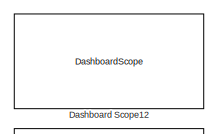
[diagram: root canvas - part 1/5, top left region]
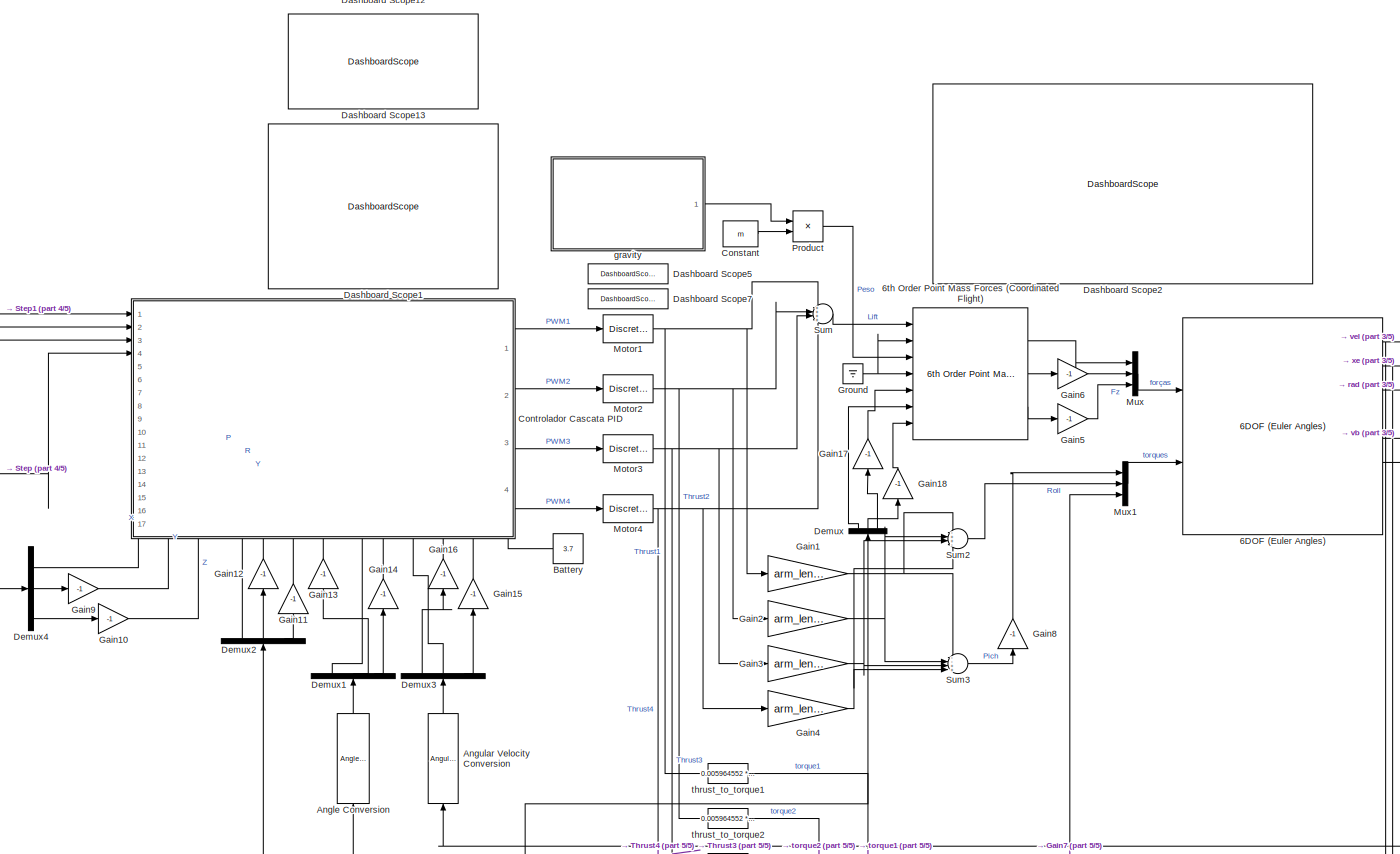
[diagram: root canvas - part 2/5, central region]
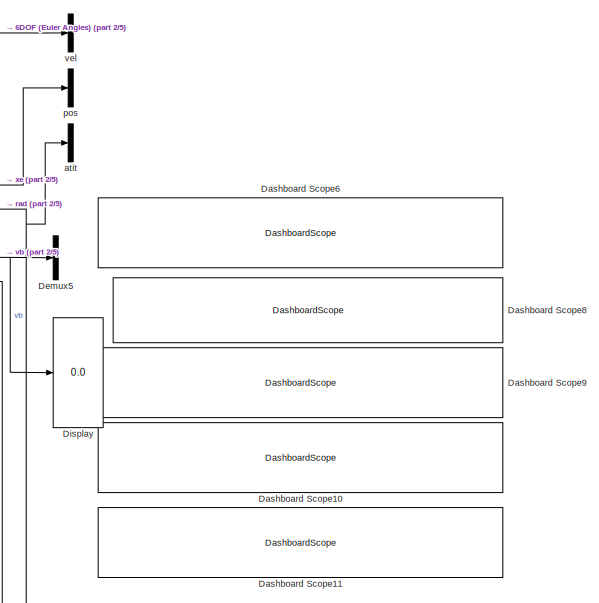
[diagram: root canvas - part 3/5, middle right region]
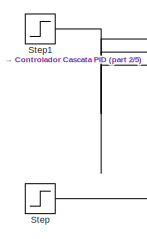
[diagram: root canvas - part 4/5, middle left region]
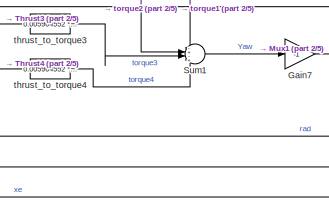
[diagram: root canvas - part 5/5, bottom center region]
MODEL slx_fbe5f493a3ac
KIND model
CONFIG AbsTol = auto
CONFIG EnableMultiTasking = off
CONFIG FixedStep = auto
CONFIG MaxStep = auto
CONFIG MinStep = auto
CONFIG RelTol = 1e-3
CONFIG SampleTimeConstraint = Unconstrained
CONFIG SolverName = VariableStepAuto
CONFIG StartTime = 0.0
CONFIG StopTime = 30.1
BLOCK [Reference] 6DOF (Euler Angles)  REF=shared6dof/6DOF (Euler Angles)
  Ports = [2, 8]
  SourceBlock = shared6dof/6DOF (Euler Angles)
  SourceProductBaseCode = AE,PW,MT,UV,VE,VP
  SourceType = 6DOF EoM (Body Axis)
BLOCK [Reference] 6th Order Point Mass Forces (Coordinated Flight)  REF=aerolibptmass/6th Order Point Mass Forces
(Coordinated Flight)
  Ports = [7, 3]
  SourceBlock = aerolibptmass/6th Order Point Mass Forces\n(Coordinated Flight)
  SourceProductBaseCode = AE
  SourceType = 6th Order Point Mass Forces (Coordinated Flight)
BLOCK [Reference] Angle Conversion  REF=aerolibconvert2/Angle Conversion
  NameLocation = right
  Ports = [1, 1]
  SourceBlock = aerolibconvert2/Angle Conversion
  SourceProductBaseCode = AE
  SourceType = Angle Conversion
BLOCK [Reference] Angular Velocity Conversion  REF=aerolibconvert2/Angular Velocity
Conversion
  NameLocation = right
  Ports = [1, 1]
  SourceBlock = aerolibconvert2/Angular Velocity\nConversion
  SourceProductBaseCode = AE
  SourceType = Angular Velocity Conversion
BLOCK [Constant] Battery
  Value = 3.7
BLOCK [Constant] Constant
  Value = m
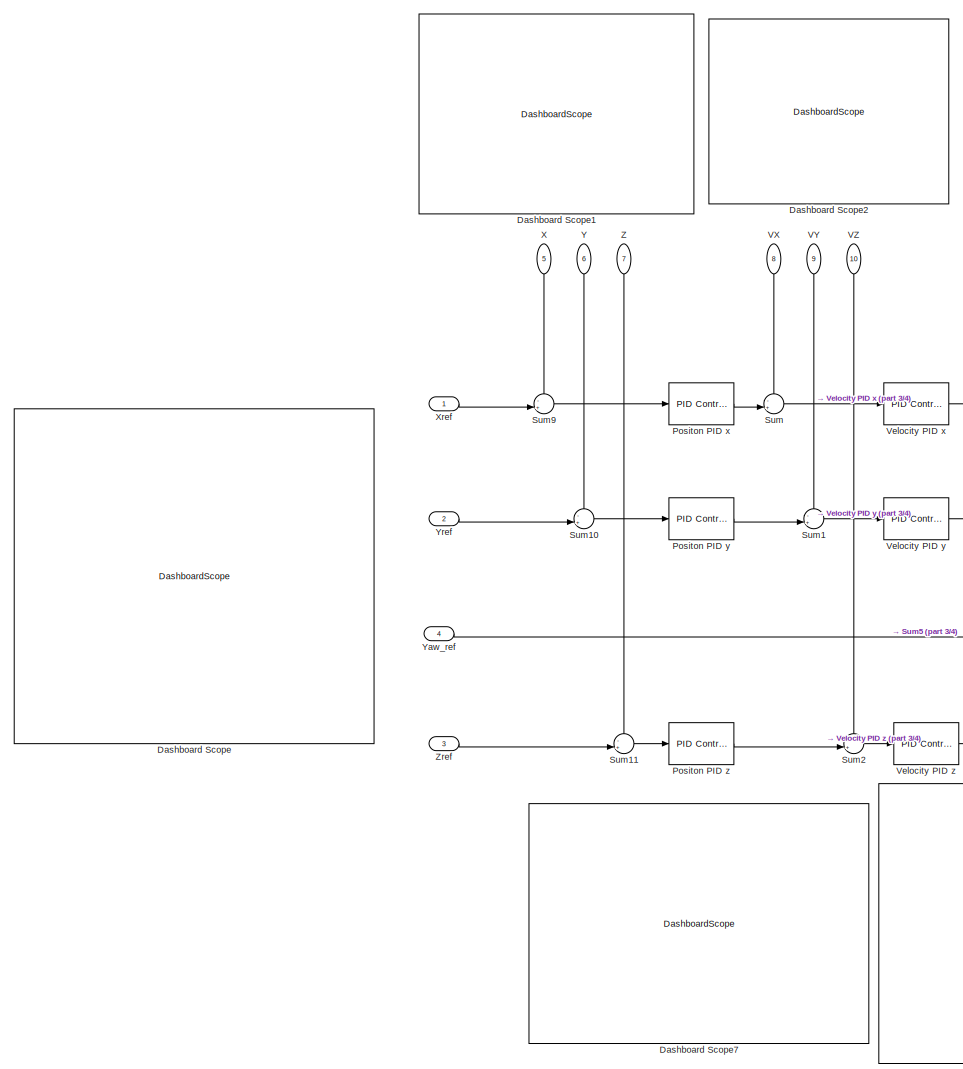
[diagram: Controlador Cascata PID - part 1/4, left side, full height]
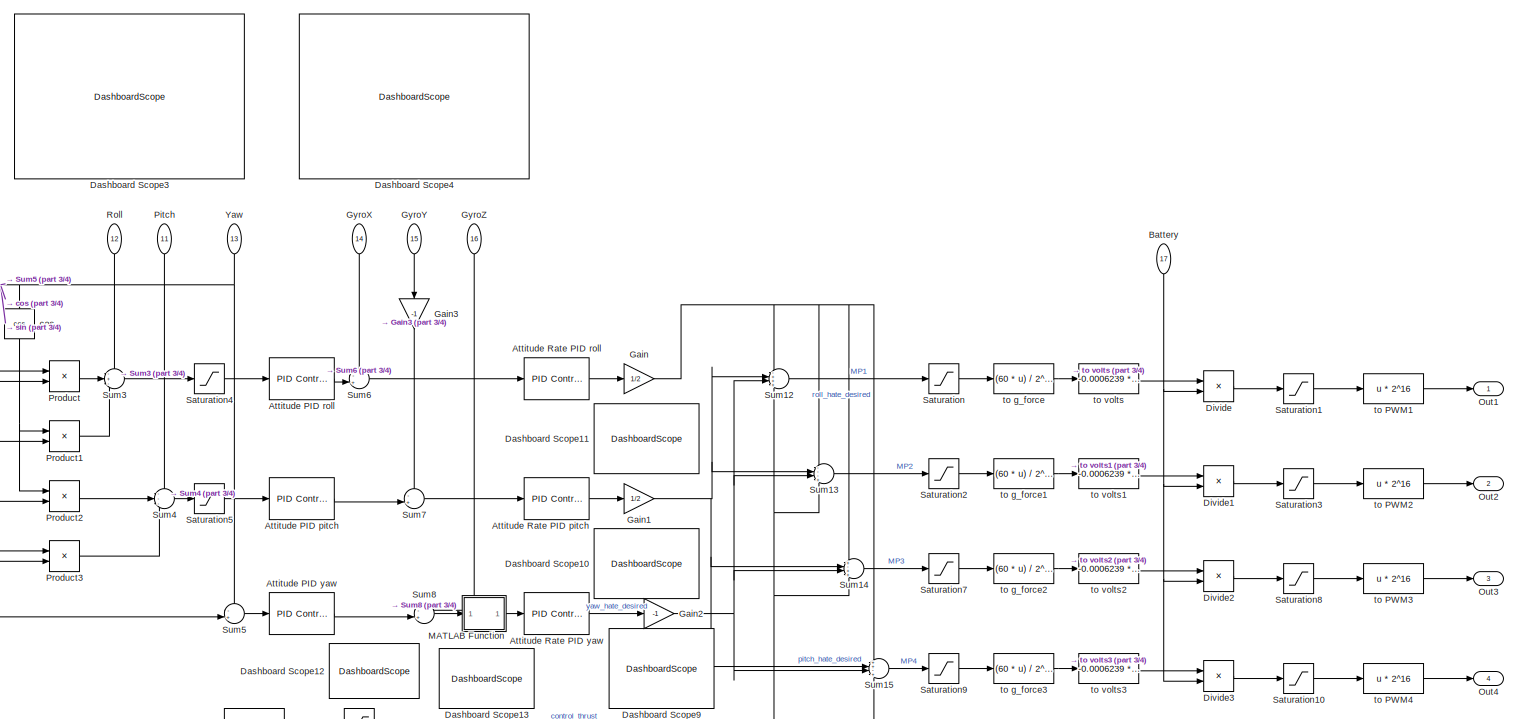
[diagram: Controlador Cascata PID - part 2/4, central region]
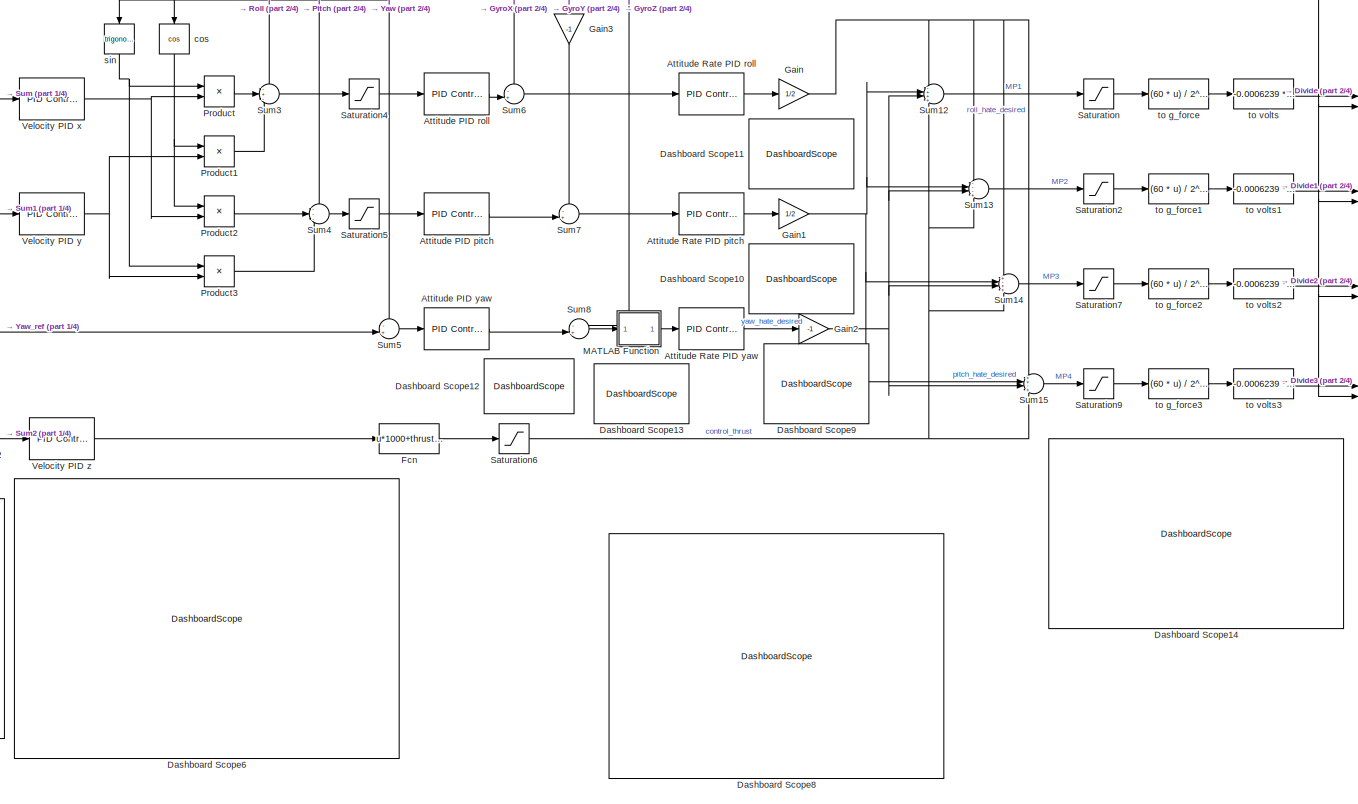
[diagram: Controlador Cascata PID - part 3/4, central region]
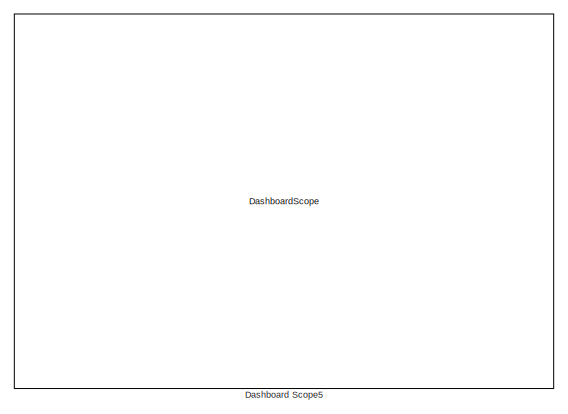
[diagram: Controlador Cascata PID - part 4/4, middle right region]
BLOCK [SubSystem] Controlador Cascata PID
  PortSchema = {"entries":[{"content":{"sides":[{"content":{"connectorIds":["In1","In2","In3","In4"]},"type":"ConnectorPlacement.EquallySpacedRectSide","uuid":"a2fdc90b-2784-47b7-8987-00e2f6fd0cff"},{"content":{"connectorIds":["Out1","Out2","Out3","Out4"],"side":"RIGHT"},"type":"ConnectorPlacement.EquallySpacedRectSide","uuid":"4d6aaf64-ac47-4bfb-8f11-7b75e050fc51"},{"content":{"connectorIds":[],"side":"TOP"},"t...<+508ch>
  Ports = [17, 4]
  RequestExecContextInheritance = off
BLOCK [Reference] Controlador Cascata PID/Attitude PID pitch  REF=pid_lib/PID Controller
  Ports = [1, 1]
  SourceBlock = pid_lib/PID Controller
  SourceProductBaseCode = SL
  SourceType = PID 1dof
BLOCK [Reference] Controlador Cascata PID/Attitude PID roll  REF=pid_lib/PID Controller
  Ports = [1, 1]
  SourceBlock = pid_lib/PID Controller
  SourceProductBaseCode = SL
  SourceType = PID 1dof
BLOCK [Reference] Controlador Cascata PID/Attitude PID yaw  REF=pid_lib/PID Controller
  Ports = [1, 1]
  SourceBlock = pid_lib/PID Controller
  SourceProductBaseCode = SL
  SourceType = PID 1dof
BLOCK [Reference] Controlador Cascata PID/Attitude Rate PID pitch  REF=pid_lib/PID Controller
  Ports = [1, 1]
  SourceBlock = pid_lib/PID Controller
  SourceProductBaseCode = SL
  SourceType = PID 1dof
BLOCK [Reference] Controlador Cascata PID/Attitude Rate PID roll  REF=pid_lib/PID Controller
  Ports = [1, 1]
  SourceBlock = pid_lib/PID Controller
  SourceProductBaseCode = SL
  SourceType = PID 1dof
BLOCK [Reference] Controlador Cascata PID/Attitude Rate PID yaw  REF=pid_lib/PID Controller
  Ports = [1, 1]
  SourceBlock = pid_lib/PID Controller
  SourceProductBaseCode = SL
  SourceType = PID 1dof
BLOCK [Inport] Controlador Cascata PID/Battery
  IconDisplay = Signal name
  NameLocation = left
  Port = 17
BLOCK [DashboardScope] Controlador Cascata PID/Dashboard Scope
BLOCK [DashboardScope] Controlador Cascata PID/Dashboard Scope1
BLOCK [DashboardScope] Controlador Cascata PID/Dashboard Scope10
BLOCK [DashboardScope] Controlador Cascata PID/Dashboard Scope11
BLOCK [DashboardScope] Controlador Cascata PID/Dashboard Scope12
BLOCK [DashboardScope] Controlador Cascata PID/Dashboard Scope13
BLOCK [DashboardScope] Controlador Cascata PID/Dashboard Scope14
BLOCK [DashboardScope] Controlador Cascata PID/Dashboard Scope2
BLOCK [DashboardScope] Controlador Cascata PID/Dashboard Scope3
BLOCK [DashboardScope] Controlador Cascata PID/Dashboard Scope4
BLOCK [DashboardScope] Controlador Cascata PID/Dashboard Scope5
BLOCK [DashboardScope] Controlador Cascata PID/Dashboard Scope6
BLOCK [DashboardScope] Controlador Cascata PID/Dashboard Scope7
BLOCK [DashboardScope] Controlador Cascata PID/Dashboard Scope8
BLOCK [DashboardScope] Controlador Cascata PID/Dashboard Scope9
BLOCK [Product] Controlador Cascata PID/Divide
  Inputs = */
  Ports = [2, 1]
BLOCK [Product] Controlador Cascata PID/Divide1
  Inputs = */
  Ports = [2, 1]
BLOCK [Product] Controlador Cascata PID/Divide2
  Inputs = */
  Ports = [2, 1]
BLOCK [Product] Controlador Cascata PID/Divide3
  Inputs = */
  Ports = [2, 1]
BLOCK [Fcn] Controlador Cascata PID/Fcn
  Expr = u*1000+thrustBase
BLOCK [Gain] Controlador Cascata PID/Gain
  Gain = 1/2
BLOCK [Gain] Controlador Cascata PID/Gain1
  Gain = 1/2
BLOCK [Gain] Controlador Cascata PID/Gain2
  Gain = -1
BLOCK [Gain] Controlador Cascata PID/Gain3
  Gain = -1
  NameLocation = left
BLOCK [Inport] Controlador Cascata PID/GyroX
  IconDisplay = Signal name
  NameLocation = left
  Port = 14
BLOCK [Inport] Controlador Cascata PID/GyroY
  IconDisplay = Signal name
  NameLocation = left
  Port = 15
BLOCK [Inport] Controlador Cascata PID/GyroZ
  IconDisplay = Signal name
  NameLocation = left
  Port = 16
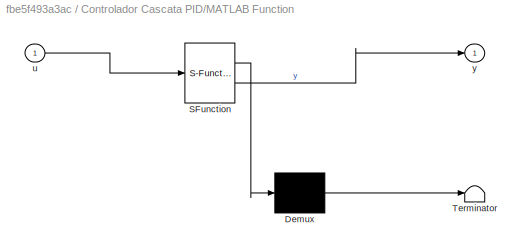
BLOCK [SubSystem] Controlador Cascata PID/MATLAB Function
  ErrorFcn = Stateflow.Translate.translate
  PermitHierarchicalResolution = ExplicitOnly
  Ports = [1, 1]
  RequestExecContextInheritance = off
  SFBlockType = MATLAB Function
  TreatAsAtomicUnit = on
BLOCK [Demux] Controlador Cascata PID/MATLAB Function/ Demux 
  Outputs = 1
  Ports = [1, 1]
BLOCK [S-Function] Controlador Cascata PID/MATLAB Function/ SFunction 
  EnableBusSupport = on
  FunctionName = sf_sfun
  PortCounts = [1 2]
  Ports = [1, 2]
  SFcnIsStateOwnerBlock = off
  SFunctionDeploymentMode = off
  Tag = Stateflow S-Function 2
BLOCK [Terminator] Controlador Cascata PID/MATLAB Function/ Terminator 
BLOCK [Inport] Controlador Cascata PID/MATLAB Function/u
BLOCK [Outport] Controlador Cascata PID/MATLAB Function/y
BLOCK [Outport] Controlador Cascata PID/Out1
BLOCK [Outport] Controlador Cascata PID/Out2
  Port = 2
BLOCK [Outport] Controlador Cascata PID/Out3
  Port = 3
BLOCK [Outport] Controlador Cascata PID/Out4
  Port = 4
BLOCK [Inport] Controlador Cascata PID/Pitch
  IconDisplay = Signal name
  NameLocation = left
  Port = 11
BLOCK [Reference] Controlador Cascata PID/Positon PID x  REF=pid_lib/PID Controller
  Ports = [1, 1]
  SourceBlock = pid_lib/PID Controller
  SourceProductBaseCode = SL
  SourceType = PID 1dof
BLOCK [Reference] Controlador Cascata PID/Positon PID y  REF=pid_lib/PID Controller
  Ports = [1, 1]
  SourceBlock = pid_lib/PID Controller
  SourceProductBaseCode = SL
  SourceType = PID 1dof
BLOCK [Reference] Controlador Cascata PID/Positon PID z  REF=pid_lib/PID Controller
  Ports = [1, 1]
  SourceBlock = pid_lib/PID Controller
  SourceProductBaseCode = SL
  SourceType = PID 1dof
BLOCK [Product] Controlador Cascata PID/Product
  Ports = [2, 1]
BLOCK [Product] Controlador Cascata PID/Product1
  Ports = [2, 1]
BLOCK [Product] Controlador Cascata PID/Product2
  Ports = [2, 1]
BLOCK [Product] Controlador Cascata PID/Product3
  Ports = [2, 1]
BLOCK [Inport] Controlador Cascata PID/Roll
  IconDisplay = Signal name
  NameLocation = left
  Port = 12
BLOCK [Saturate] Controlador Cascata PID/Saturation
  LowerLimit = 0
  UpperLimit = (2^16 - 1)
BLOCK [Saturate] Controlador Cascata PID/Saturation1
  LowerLimit = 0
  UpperLimit = 1.0
BLOCK [Saturate] Controlador Cascata PID/Saturation10
  LowerLimit = 0
  UpperLimit = 1.0
BLOCK [Saturate] Controlador Cascata PID/Saturation2
  LowerLimit = 0
  UpperLimit = (2^16 - 1)
BLOCK [Saturate] Controlador Cascata PID/Saturation3
  LowerLimit = 0
  UpperLimit = 1.0
BLOCK [Saturate] Controlador Cascata PID/Saturation4
  LowerLimit = -rpLimit
  UpperLimit = rpLimit
BLOCK [Saturate] Controlador Cascata PID/Saturation5
  LowerLimit = -rpLimit
  UpperLimit = rpLimit
BLOCK [Saturate] Controlador Cascata PID/Saturation6
  LowerLimit = thrustMim
  UpperLimit = inf
BLOCK [Saturate] Controlador Cascata PID/Saturation7
  LowerLimit = 0
  UpperLimit = (2^16 - 1)
BLOCK [Saturate] Controlador Cascata PID/Saturation8
  LowerLimit = 0
  UpperLimit = 1.0
BLOCK [Saturate] Controlador Cascata PID/Saturation9
  LowerLimit = 0
  UpperLimit = (2^16 - 1)
BLOCK [Sum] Controlador Cascata PID/Sum
  Inputs = -+|
  Ports = [2, 1]
BLOCK [Sum] Controlador Cascata PID/Sum1
  Inputs = -+|
  Ports = [2, 1]
BLOCK [Sum] Controlador Cascata PID/Sum10
  Inputs = -+|
  Ports = [2, 1]
BLOCK [Sum] Controlador Cascata PID/Sum11
  Inputs = -+|
  Ports = [2, 1]
BLOCK [Sum] Controlador Cascata PID/Sum12
  Inputs = -+++
  Ports = [4, 1]
BLOCK [Sum] Controlador Cascata PID/Sum13
  Inputs = ---+
  Ports = [4, 1]
BLOCK [Sum] Controlador Cascata PID/Sum14
  Inputs = +-++
  Ports = [4, 1]
BLOCK [Sum] Controlador Cascata PID/Sum15
  Inputs = ++-+
  Ports = [4, 1]
BLOCK [Sum] Controlador Cascata PID/Sum2
  Inputs = -+|
  Ports = [2, 1]
BLOCK [Sum] Controlador Cascata PID/Sum3
  Inputs = -+-
  Ports = [3, 1]
BLOCK [Sum] Controlador Cascata PID/Sum4
  Inputs = ---
  Ports = [3, 1]
BLOCK [Sum] Controlador Cascata PID/Sum5
  Inputs = -+|
  Ports = [2, 1]
BLOCK [Sum] Controlador Cascata PID/Sum6
  Inputs = -+|
  Ports = [2, 1]
BLOCK [Sum] Controlador Cascata PID/Sum7
  Inputs = -+|
  Ports = [2, 1]
BLOCK [Sum] Controlador Cascata PID/Sum8
  Inputs = -+|
  Ports = [2, 1]
BLOCK [Sum] Controlador Cascata PID/Sum9
  Inputs = -+|
  Ports = [2, 1]
BLOCK [Inport] Controlador Cascata PID/VX
  IconDisplay = Signal name
  NameLocation = left
  Port = 8
BLOCK [Inport] Controlador Cascata PID/VY
  IconDisplay = Signal name
  NameLocation = left
  Port = 9
BLOCK [Inport] Controlador Cascata PID/VZ
  IconDisplay = Signal name
  NameLocation = left
  Port = 10
BLOCK [Reference] Controlador Cascata PID/Velocity PID x  REF=pid_lib/PID Controller
  Ports = [1, 1]
  SourceBlock = pid_lib/PID Controller
  SourceProductBaseCode = SL
  SourceType = PID 1dof
BLOCK [Reference] Controlador Cascata PID/Velocity PID y  REF=pid_lib/PID Controller
  Ports = [1, 1]
  SourceBlock = pid_lib/PID Controller
  SourceProductBaseCode = SL
  SourceType = PID 1dof
BLOCK [Reference] Controlador Cascata PID/Velocity PID z  REF=pid_lib/PID Controller
  Ports = [1, 1]
  SourceBlock = pid_lib/PID Controller
  SourceProductBaseCode = SL
  SourceType = PID 1dof
BLOCK [Inport] Controlador Cascata PID/X
  IconDisplay = Signal name
  NameLocation = left
  Port = 5
BLOCK [Inport] Controlador Cascata PID/Xref
  IconDisplay = Signal name
BLOCK [Inport] Controlador Cascata PID/Y
  IconDisplay = Signal name
  NameLocation = left
  Port = 6
BLOCK [Inport] Controlador Cascata PID/Yaw
  IconDisplay = Signal name
  NameLocation = left
  Port = 13
BLOCK [Inport] Controlador Cascata PID/Yaw_ref
  IconDisplay = Signal name
  Port = 4
BLOCK [Inport] Controlador Cascata PID/Yref
  IconDisplay = Signal name
  Port = 2
BLOCK [Inport] Controlador Cascata PID/Z
  IconDisplay = Signal name
  NameLocation = left
  Port = 7
BLOCK [Inport] Controlador Cascata PID/Zref
  IconDisplay = Signal name
  Port = 3
BLOCK [Trigonometry] Controlador Cascata PID/cos
  NameLocation = left
  Operator = cos
  Ports = [1, 1]
BLOCK [Trigonometry] Controlador Cascata PID/sin
  NameLocation = left
  Ports = [1, 1]
BLOCK [Fcn] Controlador Cascata PID/to PWM1
  Expr = u * 2^16
BLOCK [Fcn] Controlador Cascata PID/to PWM2
  Expr = u * 2^16
BLOCK [Fcn] Controlador Cascata PID/to PWM3
  Expr = u * 2^16
BLOCK [Fcn] Controlador Cascata PID/to PWM4
  Expr = u * 2^16
BLOCK [Fcn] Controlador Cascata PID/to g_force
  Expr = (60 * u) / 2^16
BLOCK [Fcn] Controlador Cascata PID/to g_force1
  Expr = (60 * u) / 2^16
BLOCK [Fcn] Controlador Cascata PID/to g_force2
  Expr = (60 * u) / 2^16
BLOCK [Fcn] Controlador Cascata PID/to g_force3
  Expr = (60 * u) / 2^16
BLOCK [Fcn] Controlador Cascata PID/to volts
  Expr = -0.0006239 * u * u + 0.088 * u;
BLOCK [Fcn] Controlador Cascata PID/to volts1
  Expr = -0.0006239 * u * u + 0.088 * u;
BLOCK [Fcn] Controlador Cascata PID/to volts2
  Expr = -0.0006239 * u * u + 0.088 * u;
BLOCK [Fcn] Controlador Cascata PID/to volts3
  Expr = -0.0006239 * u * u + 0.088 * u;
BLOCK [DashboardScope] Dashboard Scope1
BLOCK [DashboardScope] Dashboard Scope10
BLOCK [DashboardScope] Dashboard Scope11
BLOCK [DashboardScope] Dashboard Scope12
BLOCK [DashboardScope] Dashboard Scope13
BLOCK [DashboardScope] Dashboard Scope2
BLOCK [DashboardScope] Dashboard Scope5
BLOCK [DashboardScope] Dashboard Scope6
BLOCK [DashboardScope] Dashboard Scope7
BLOCK [DashboardScope] Dashboard Scope8
BLOCK [DashboardScope] Dashboard Scope9
BLOCK [Demux] Demux
  NameLocation = right
  Outputs = 3
  Ports = [1, 3]
BLOCK [Demux] Demux1
  NameLocation = right
  Outputs = 3
  Ports = [1, 3]
BLOCK [Demux] Demux2
  NameLocation = right
  Outputs = 3
  Ports = [1, 3]
BLOCK [Demux] Demux3
  NameLocation = right
  Outputs = 3
  Ports = [1, 3]
BLOCK [Demux] Demux4
  Outputs = 3
  Ports = [1, 3]
BLOCK [Demux] Demux5
  Outputs = 3
  Ports = [1, 3]
BLOCK [Display] Display
  Decimation = 1
  Ports = [1]
BLOCK [Gain] Gain1
  Gain = arm_length
BLOCK [Gain] Gain10
  Gain = -1
BLOCK [Gain] Gain11
  Gain = -1
  NameLocation = right
BLOCK [Gain] Gain12
  Gain = -1
  NameLocation = right
BLOCK [Gain] Gain13
  Gain = -1
  NameLocation = right
BLOCK [Gain] Gain14
  Gain = -1
  NameLocation = right
BLOCK [Gain] Gain15
  Gain = -1
  NameLocation = right
BLOCK [Gain] Gain16
  Gain = -1
  NameLocation = right
BLOCK [Gain] Gain17
  Gain = -1
  NameLocation = right
BLOCK [Gain] Gain18
  Gain = -1
  NameLocation = right
BLOCK [Gain] Gain2
  Gain = arm_length
BLOCK [Gain] Gain3
  Gain = arm_length
BLOCK [Gain] Gain4
  Gain = arm_length
BLOCK [Gain] Gain5
  Gain = -1
BLOCK [Gain] Gain6
  Gain = -1
BLOCK [Gain] Gain7
  Gain = -1
BLOCK [Gain] Gain8
  Gain = -1
  NameLocation = right
BLOCK [Gain] Gain9
  Gain = -1
BLOCK [Ground] Ground
BLOCK [DiscreteTransferFcn] Motor1
  Denominator = [1  -0.9695404]
  InputPortMap = u0
  Numerator = [7.2345374*10^-8 0]
  Ports = [1, 1]
  SampleTime = Tpid_rat
BLOCK [DiscreteTransferFcn] Motor2
  Denominator = [1  -0.9695404]
  InputPortMap = u0
  Numerator = [7.2345374*10^-8 0]
  Ports = [1, 1]
  SampleTime = Tpid_rat
BLOCK [DiscreteTransferFcn] Motor3
  Denominator = [1  -0.9695404]
  InputPortMap = u0
  Numerator = [7.2345374*10^-8 0]
  Ports = [1, 1]
  SampleTime = Tpid_rat
BLOCK [DiscreteTransferFcn] Motor4
  Denominator = [1  -0.9695404]
  InputPortMap = u0
  Numerator = [7.2345374*10^-8 0]
  Ports = [1, 1]
  SampleTime = Tpid_rat
BLOCK [Mux] Mux
  DisplayOption = bar
  Inputs = 3
  Ports = [3, 1]
BLOCK [Mux] Mux1
  DisplayOption = bar
  Inputs = 3
  Ports = [3, 1]
BLOCK [Product] Product
  Ports = [2, 1]
BLOCK [Step] Step
  SampleTime = 0
  Time = 30
BLOCK [Step] Step1
  After = 0
  SampleTime = 0
  Time = 20
BLOCK [Sum] Sum
  Inputs = ++++
  Ports = [4, 1]
BLOCK [Sum] Sum1
  Inputs = -+-+
  Ports = [4, 1]
BLOCK [Sum] Sum2
  Inputs = -++-
  Ports = [4, 1]
BLOCK [Sum] Sum3
  Inputs = --++
  Ports = [4, 1]
BLOCK [Demux] atit
  Outputs = 3
  Ports = [1, 3]
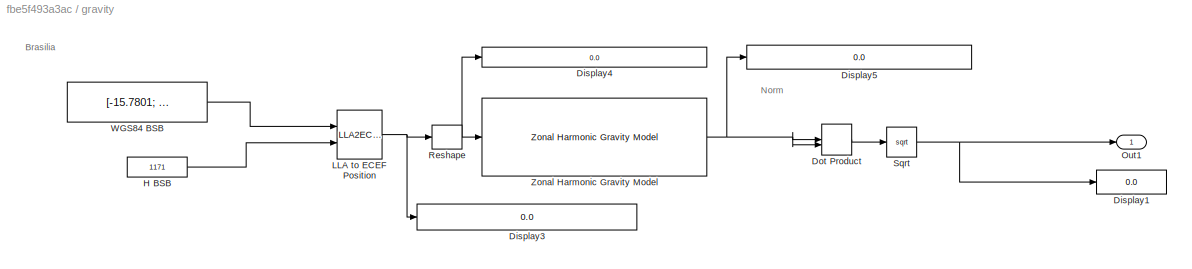
BLOCK [SubSystem] gravity
  Ports = [0, 1]
  RequestExecContextInheritance = off
BLOCK [Display] gravity/Display1
  Decimation = 1
  Ports = [1]
BLOCK [Display] gravity/Display3
  Decimation = 1
  Ports = [1]
BLOCK [Display] gravity/Display4
  Decimation = 1
  Ports = [1]
BLOCK [Display] gravity/Display5
  Decimation = 1
  Ports = [1]
BLOCK [DotProduct] gravity/Dot Product
  OutDataTypeStr = Inherit: Inherit via internal rule
BLOCK [Constant] gravity/H BSB
  Value = 1171
BLOCK [LLA2ECEF] gravity/LLA to ECEF Position
  Ports = [2, 1]
  R = 6378137
BLOCK [Outport] gravity/Out1
BLOCK [Reshape] gravity/Reshape
  OutputDimensionality = Row vector (2-D)
  Ports = [1, 1]
BLOCK [Sqrt] gravity/Sqrt
BLOCK [Constant] gravity/WGS84 BSB
  Value = [-15.7801; -47.9292]
BLOCK [Reference] gravity/Zonal Harmonic Gravity Model  REF=aerolibgravity2/Zonal Harmonic Gravity Model
  Ports = [1, 1]
  SourceBlock = aerolibgravity2/Zonal Harmonic Gravity Model
  SourceProductBaseCode = AE
  SourceType = Zonal Harmonic Gravity Model
BLOCK [Demux] pos
  Outputs = 3
  Ports = [1, 3]
BLOCK [Fcn] thrust_to_torque1
  Expr = 0.005964552 * u + 0.00001563383
BLOCK [Fcn] thrust_to_torque2
  Expr = 0.005964552 * u + 0.00001563383
BLOCK [Fcn] thrust_to_torque3
  Expr = 0.005964552 * u + 0.00001563383
BLOCK [Fcn] thrust_to_torque4
  Expr = 0.005964552 * u + 0.00001563383
BLOCK [Demux] vel
  Outputs = 3
  Ports = [1, 3]
ANNOTATION gravity: Brasilia
ANNOTATION gravity: Norm
NET 6DOF (Euler Angles):1 -> Demux2:1, vel:1
NET 6DOF (Euler Angles):2 -> Demux4:1, pos:1
NET 6DOF (Euler Angles):3 -> Angle Conversion:1, Demux:1, atit:1
NET 6DOF (Euler Angles):5 -> Demux5:1, Display:1
LINE 6DOF (Euler Angles):6 -> Angular Velocity Conversion:1
LINE 6th Order Point Mass Forces (Coordinated Flight):1 -> Mux:1
LINE 6th Order Point Mass Forces (Coordinated Flight):2 -> Gain6:1
LINE 6th Order Point Mass Forces (Coordinated Flight):3 -> Gain5:1
LINE Angle Conversion:1 -> Demux1:1
LINE Angular Velocity Conversion:1 -> Demux3:1
LINE Battery:1 -> Controlador Cascata PID:17
LINE Constant:1 -> Product:2
LINE Controlador Cascata PID/Attitude PID pitch:1 -> Controlador Cascata PID/Sum7:2
LINE Controlador Cascata PID/Attitude PID roll:1 -> Controlador Cascata PID/Sum6:2
LINE Controlador Cascata PID/Attitude PID yaw:1 -> Controlador Cascata PID/Sum8:2
LINE Controlador Cascata PID/Attitude Rate PID pitch:1 -> Controlador Cascata PID/Gain1:1
LINE Controlador Cascata PID/Attitude Rate PID roll:1 -> Controlador Cascata PID/Gain:1
LINE Controlador Cascata PID/Attitude Rate PID yaw:1 -> Controlador Cascata PID/Gain2:1
NET Controlador Cascata PID/Battery:1 -> Controlador Cascata PID/Divide1:2, Controlador Cascata PID/Divide2:2, Controlador Cascata PID/Divide3:2, Controlador Cascata PID/Divide:2
LINE Controlador Cascata PID/Divide1:1 -> Controlador Cascata PID/Saturation3:1
LINE Controlador Cascata PID/Divide2:1 -> Controlador Cascata PID/Saturation8:1
LINE Controlador Cascata PID/Divide3:1 -> Controlador Cascata PID/Saturation10:1
LINE Controlador Cascata PID/Divide:1 -> Controlador Cascata PID/Saturation1:1
LINE Controlador Cascata PID/Fcn:1 -> Controlador Cascata PID/Saturation6:1
NET Controlador Cascata PID/Gain1:1 -> Controlador Cascata PID/Sum12:2, Controlador Cascata PID/Sum13:2, Controlador Cascata PID/Sum14:2, Controlador Cascata PID/Sum15:2
NET Controlador Cascata PID/Gain2:1 -> Controlador Cascata PID/Sum12:3, Controlador Cascata PID/Sum13:3, Controlador Cascata PID/Sum14:3, Controlador Cascata PID/Sum15:3
LINE Controlador Cascata PID/Gain3:1 -> Controlador Cascata PID/Sum7:1
NET Controlador Cascata PID/Gain:1 -> Controlador Cascata PID/Sum12:1, Controlador Cascata PID/Sum13:1, Controlador Cascata PID/Sum14:1, Controlador Cascata PID/Sum15:1
LINE Controlador Cascata PID/GyroX:1 -> Controlador Cascata PID/Sum6:1
LINE Controlador Cascata PID/GyroY:1 -> Controlador Cascata PID/Gain3:1
LINE Controlador Cascata PID/GyroZ:1 -> Controlador Cascata PID/Sum8:1
LINE Controlador Cascata PID/MATLAB Function:1 -> Controlador Cascata PID/Attitude Rate PID yaw:1
LINE Controlador Cascata PID/Pitch:1 -> Controlador Cascata PID/Sum4:1
LINE Controlador Cascata PID/Positon PID x:1 -> Controlador Cascata PID/Sum:2
LINE Controlador Cascata PID/Positon PID y:1 -> Controlador Cascata PID/Sum1:2
LINE Controlador Cascata PID/Positon PID z:1 -> Controlador Cascata PID/Sum2:2
LINE Controlador Cascata PID/Product1:1 -> Controlador Cascata PID/Sum3:3
LINE Controlador Cascata PID/Product2:1 -> Controlador Cascata PID/Sum4:2
LINE Controlador Cascata PID/Product3:1 -> Controlador Cascata PID/Sum4:3
LINE Controlador Cascata PID/Product:1 -> Controlador Cascata PID/Sum3:2
LINE Controlador Cascata PID/Roll:1 -> Controlador Cascata PID/Sum3:1
LINE Controlador Cascata PID/Saturation10:1 -> Controlador Cascata PID/to PWM4:1
LINE Controlador Cascata PID/Saturation1:1 -> Controlador Cascata PID/to PWM1:1
LINE Controlador Cascata PID/Saturation2:1 -> Controlador Cascata PID/to g_force1:1
LINE Controlador Cascata PID/Saturation3:1 -> Controlador Cascata PID/to PWM2:1
LINE Controlador Cascata PID/Saturation4:1 -> Controlador Cascata PID/Attitude PID roll:1
LINE Controlador Cascata PID/Saturation5:1 -> Controlador Cascata PID/Attitude PID pitch:1
NET Controlador Cascata PID/Saturation6:1 -> Controlador Cascata PID/Sum12:4, Controlador Cascata PID/Sum13:4, Controlador Cascata PID/Sum14:4, Controlador Cascata PID/Sum15:4
LINE Controlador Cascata PID/Saturation7:1 -> Controlador Cascata PID/to g_force2:1
LINE Controlador Cascata PID/Saturation8:1 -> Controlador Cascata PID/to PWM3:1
LINE Controlador Cascata PID/Saturation9:1 -> Controlador Cascata PID/to g_force3:1
LINE Controlador Cascata PID/Saturation:1 -> Controlador Cascata PID/to g_force:1
LINE Controlador Cascata PID/Sum10:1 -> Controlador Cascata PID/Positon PID y:1
LINE Controlador Cascata PID/Sum11:1 -> Controlador Cascata PID/Positon PID z:1
LINE Controlador Cascata PID/Sum12:1 -> Controlador Cascata PID/Saturation:1
LINE Controlador Cascata PID/Sum13:1 -> Controlador Cascata PID/Saturation2:1
LINE Controlador Cascata PID/Sum14:1 -> Controlador Cascata PID/Saturation7:1
LINE Controlador Cascata PID/Sum15:1 -> Controlador Cascata PID/Saturation9:1
LINE Controlador Cascata PID/Sum1:1 -> Controlador Cascata PID/Velocity PID y:1
LINE Controlador Cascata PID/Sum2:1 -> Controlador Cascata PID/Velocity PID z:1
LINE Controlador Cascata PID/Sum3:1 -> Controlador Cascata PID/Saturation4:1
LINE Controlador Cascata PID/Sum4:1 -> Controlador Cascata PID/Saturation5:1
LINE Controlador Cascata PID/Sum5:1 -> Controlador Cascata PID/Attitude PID yaw:1
LINE Controlador Cascata PID/Sum6:1 -> Controlador Cascata PID/Attitude Rate PID roll:1
LINE Controlador Cascata PID/Sum7:1 -> Controlador Cascata PID/Attitude Rate PID pitch:1
LINE Controlador Cascata PID/Sum8:1 -> Controlador Cascata PID/MATLAB Function:1
LINE Controlador Cascata PID/Sum9:1 -> Controlador Cascata PID/Positon PID x:1
LINE Controlador Cascata PID/Sum:1 -> Controlador Cascata PID/Velocity PID x:1
LINE Controlador Cascata PID/VX:1 -> Controlador Cascata PID/Sum:1
LINE Controlador Cascata PID/VY:1 -> Controlador Cascata PID/Sum1:1
LINE Controlador Cascata PID/VZ:1 -> Controlador Cascata PID/Sum2:1
NET Controlador Cascata PID/Velocity PID x:1 -> Controlador Cascata PID/Product2:2, Controlador Cascata PID/Product:2
NET Controlador Cascata PID/Velocity PID y:1 -> Controlador Cascata PID/Product1:2, Controlador Cascata PID/Product3:2
LINE Controlador Cascata PID/Velocity PID z:1 -> Controlador Cascata PID/Fcn:1
LINE Controlador Cascata PID/X:1 -> Controlador Cascata PID/Sum9:1
LINE Controlador Cascata PID/Xref:1 -> Controlador Cascata PID/Sum9:2
LINE Controlador Cascata PID/Y:1 -> Controlador Cascata PID/Sum10:1
NET Controlador Cascata PID/Yaw:1 -> Controlador Cascata PID/Sum5:1, Controlador Cascata PID/cos:1, Controlador Cascata PID/sin:1
LINE Controlador Cascata PID/Yaw_ref:1 -> Controlador Cascata PID/Sum5:2
LINE Controlador Cascata PID/Yref:1 -> Controlador Cascata PID/Sum10:2
LINE Controlador Cascata PID/Z:1 -> Controlador Cascata PID/Sum11:1
LINE Controlador Cascata PID/Zref:1 -> Controlador Cascata PID/Sum11:2
NET Controlador Cascata PID/cos:1 -> Controlador Cascata PID/Product1:1, Controlador Cascata PID/Product2:1
NET Controlador Cascata PID/sin:1 -> Controlador Cascata PID/Product3:1, Controlador Cascata PID/Product:1
LINE Controlador Cascata PID/to PWM1:1 -> Controlador Cascata PID/Out1:1
LINE Controlador Cascata PID/to PWM2:1 -> Controlador Cascata PID/Out2:1
LINE Controlador Cascata PID/to PWM3:1 -> Controlador Cascata PID/Out3:1
LINE Controlador Cascata PID/to PWM4:1 -> Controlador Cascata PID/Out4:1
LINE Controlador Cascata PID/to g_force1:1 -> Controlador Cascata PID/to volts1:1
LINE Controlador Cascata PID/to g_force2:1 -> Controlador Cascata PID/to volts2:1
LINE Controlador Cascata PID/to g_force3:1 -> Controlador Cascata PID/to volts3:1
LINE Controlador Cascata PID/to g_force:1 -> Controlador Cascata PID/to volts:1
LINE Controlador Cascata PID/to volts1:1 -> Controlador Cascata PID/Divide1:1
LINE Controlador Cascata PID/to volts2:1 -> Controlador Cascata PID/Divide2:1
LINE Controlador Cascata PID/to volts3:1 -> Controlador Cascata PID/Divide3:1
LINE Controlador Cascata PID/to volts:1 -> Controlador Cascata PID/Divide:1
LINE Controlador Cascata PID:1 -> Motor1:1
LINE Controlador Cascata PID:2 -> Motor2:1
LINE Controlador Cascata PID:3 -> Motor3:1
LINE Controlador Cascata PID:4 -> Motor4:1
LINE Demux1:1 -> Controlador Cascata PID:12
LINE Demux1:2 -> Gain13:1
LINE Demux1:3 -> Gain14:1
LINE Demux2:1 -> Controlador Cascata PID:8
LINE Demux2:2 -> Gain12:1
LINE Demux2:3 -> Gain11:1
LINE Demux3:1 -> Gain16:1
LINE Demux3:2 -> Controlador Cascata PID:14
LINE Demux3:3 -> Gain15:1
LINE Demux4:1 -> Controlador Cascata PID:5
LINE Demux4:2 -> Gain9:1
LINE Demux4:3 -> Gain10:1
LINE Demux:1 -> 6th Order Point Mass Forces (Coordinated Flight):6
LINE Demux:2 -> Gain18:1
LINE Demux:3 -> Gain17:1
LINE Gain10:1 -> Controlador Cascata PID:7
LINE Gain11:1 -> Controlador Cascata PID:10
LINE Gain12:1 -> Controlador Cascata PID:9
LINE Gain13:1 -> Controlador Cascata PID:11
LINE Gain14:1 -> Controlador Cascata PID:13
LINE Gain15:1 -> Controlador Cascata PID:16
LINE Gain16:1 -> Controlador Cascata PID:15
LINE Gain17:1 -> 6th Order Point Mass Forces (Coordinated Flight):5
LINE Gain18:1 -> 6th Order Point Mass Forces (Coordinated Flight):7
NET Gain1:1 -> Sum2:1, Sum3:1
NET Gain2:1 -> Sum2:2, Sum3:2
NET Gain3:1 -> Sum2:3, Sum3:3
NET Gain4:1 -> Sum2:4, Sum3:4
LINE Gain5:1 -> Mux:3
LINE Gain6:1 -> Mux:2
LINE Gain7:1 -> Mux1:3
LINE Gain8:1 -> Mux1:1
LINE Gain9:1 -> Controlador Cascata PID:6
NET Ground:1 -> 6th Order Point Mass Forces (Coordinated Flight):2, 6th Order Point Mass Forces (Coordinated Flight):4
NET Motor1:1 -> Gain1:1, Sum:1, thrust_to_torque1:1
NET Motor2:1 -> Gain2:1, Sum:2, thrust_to_torque2:1
NET Motor3:1 -> Gain3:1, Sum:3, thrust_to_torque3:1
NET Motor4:1 -> Gain4:1, Sum:4, thrust_to_torque4:1
LINE Mux1:1 -> 6DOF (Euler Angles):2
LINE Mux:1 -> 6DOF (Euler Angles):1
LINE Product:1 -> 6th Order Point Mass Forces (Coordinated Flight):3
NET Step1:1 -> Controlador Cascata PID:1, Controlador Cascata PID:2, Controlador Cascata PID:3
LINE Step:1 -> Controlador Cascata PID:4
LINE Sum1:1 -> Gain7:1
LINE Sum2:1 -> Mux1:2
LINE Sum3:1 -> Gain8:1
LINE Sum:1 -> 6th Order Point Mass Forces (Coordinated Flight):1
LINE gravity/Dot Product:1 -> gravity/Sqrt:1
LINE gravity/H BSB:1 -> gravity/LLA to ECEF Position:2
NET gravity/LLA to ECEF Position:1 -> gravity/Display3:1, gravity/Reshape:1
NET gravity/Reshape:1 -> gravity/Display4:1, gravity/Zonal Harmonic Gravity Model:1
NET gravity/Sqrt:1 -> gravity/Display1:1, gravity/Out1:1
LINE gravity/WGS84 BSB:1 -> gravity/LLA to ECEF Position:1
NET gravity/Zonal Harmonic Gravity Model:1 -> gravity/Display5:1, gravity/Dot Product:1, gravity/Dot Product:2
LINE gravity:1 -> Product:1
LINE thrust_to_torque1:1 -> Sum1:1
LINE thrust_to_torque2:1 -> Sum1:2
LINE thrust_to_torque3:1 -> Sum1:3
LINE thrust_to_torque4:1 -> Sum1:4
note: NET lines group one-source signal fan-out (src -> all destinations, sorted); 1:1 wires keep LINE
CHART Controlador Cascata PID/MATLAB Function states=1 transitions=1
  STATE_LABEL 'eML_blk_kernel()'
  STATE_LABEL 'SCRIPT:\nfunction y = fcn(u)\n    if u > 180\n        u = u - 360;\n    end\n    if u < -180\n        u = u + 360;\n    end\ny = u;\n'
CHART  states=0 transitions=0
